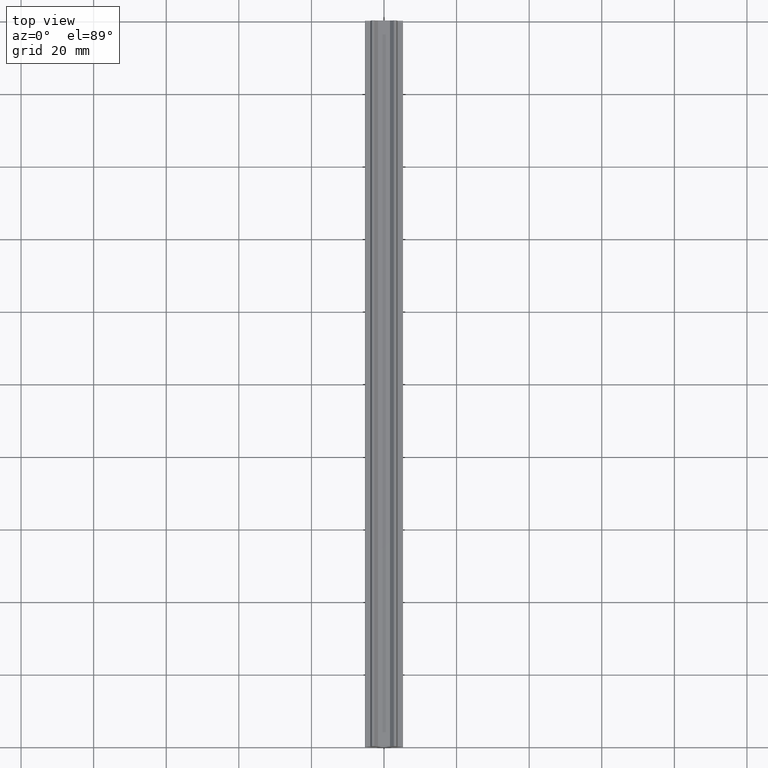
[diagram: clean part render]
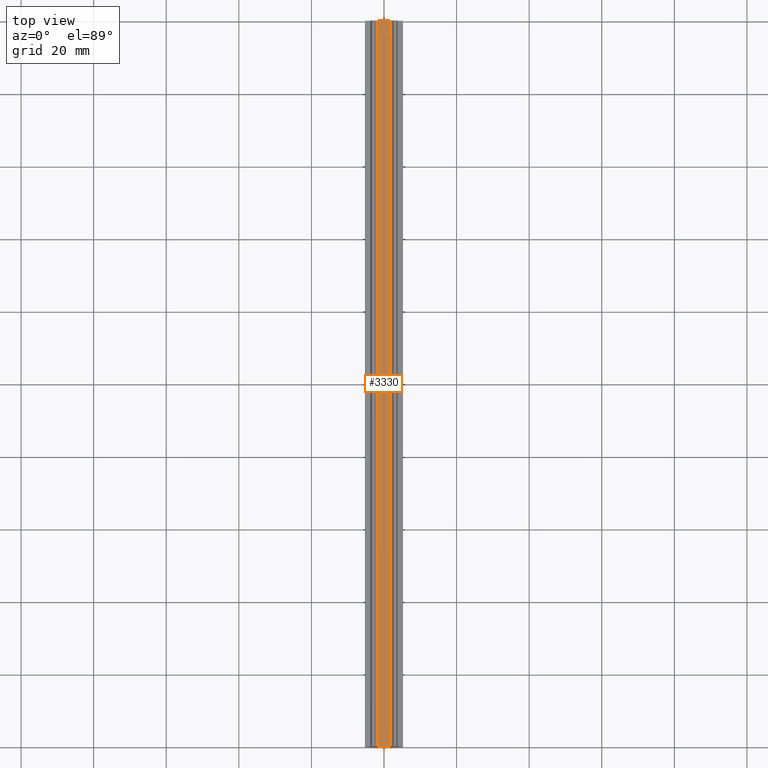
[diagram: same view with one face highlighted and labeled with its STEP entity id]
A machine part, top view. The second image highlights one B-rep face of the part: STEP entity #3330.
In plain terms, the highlighted face is a freeform B-spline surface patch.
Its self-contained STEP definition (entity closure, byte-faithful):
#51=CARTESIAN_POINT('',(1.649999999999950,0.0,0.0));
#52=VERTEX_POINT('',#51);
#58=CARTESIAN_POINT('',(-1.649999999999950,0.0,0.0));
#59=VERTEX_POINT('',#58);
#60=CARTESIAN_POINT('',(1.649999999999950,0.0,0.0));
#61=CARTESIAN_POINT('',(-1.649999999999950,0.0,0.0));
#62=QUASI_UNIFORM_CURVE('',1,(#60,#61),.UNSPECIFIED.,.F.,.U.);
#63=EDGE_CURVE('',#52,#59,#62,.T.);
#891=CARTESIAN_POINT('',(1.649999999999950,200.0,0.0));
#892=VERTEX_POINT('',#891);
#1559=CARTESIAN_POINT('',(-1.649999999999950,200.0,0.0));
#1560=VERTEX_POINT('',#1559);
#1566=CARTESIAN_POINT('',(1.649999999999950,200.0,0.0));
#1567=CARTESIAN_POINT('',(-1.649999999999950,200.0,0.0));
#1568=QUASI_UNIFORM_CURVE('',1,(#1566,#1567),.UNSPECIFIED.,.F.,.U.);
#1569=EDGE_CURVE('',#892,#1560,#1568,.T.);
#3305=CARTESIAN_POINT('',(-1.649999999999950,200.0,0.0));
#3306=CARTESIAN_POINT('',(-1.649999999999950,0.0,0.0));
#3307=QUASI_UNIFORM_CURVE('',1,(#3305,#3306),.UNSPECIFIED.,.F.,.U.);
#3308=EDGE_CURVE('',#1560,#59,#3307,.T.);
#3315=CARTESIAN_POINT('',(-1.814834993603905,-9.989999612361194,0.0));
#3316=CARTESIAN_POINT('',(1.814835082116802,-9.989999612361194,0.0));
#3317=CARTESIAN_POINT('',(-1.814834993603905,209.990004976779200,0.0));
#3318=CARTESIAN_POINT('',(1.814835082116802,209.990004976779200,0.0));
#3319=B_SPLINE_SURFACE_WITH_KNOTS('',1,1,((#3315,#3317),(#3316,#3318)),.UNSPECIFIED.,.F.,.F.,.U.,(2,2),(2,2),(0.0,3.629670075720707),(0.0,219.980004589140410),.UNSPECIFIED.);
#3320=ORIENTED_EDGE('',*,*,#63,.F.);
#3321=CARTESIAN_POINT('',(1.649999999999950,200.0,0.0));
#3322=CARTESIAN_POINT('',(1.649999999999950,0.0,0.0));
#3323=QUASI_UNIFORM_CURVE('',1,(#3321,#3322),.UNSPECIFIED.,.F.,.U.);
#3324=EDGE_CURVE('',#892,#52,#3323,.T.);
#3325=ORIENTED_EDGE('',*,*,#3324,.F.);
#3326=ORIENTED_EDGE('',*,*,#1569,.T.);
#3327=ORIENTED_EDGE('',*,*,#3308,.T.);
#3328=EDGE_LOOP('',(#3320,#3325,#3326,#3327));
#3329=FACE_OUTER_BOUND('',#3328,.T.);
#3330=ADVANCED_FACE('',(#3329),#3319,.T.);